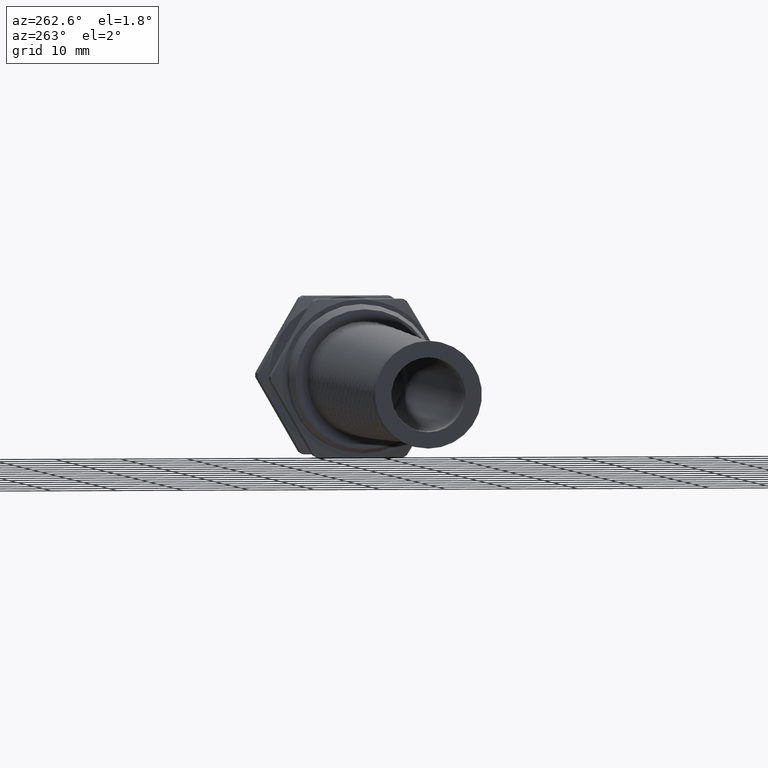
[diagram: clean part render]
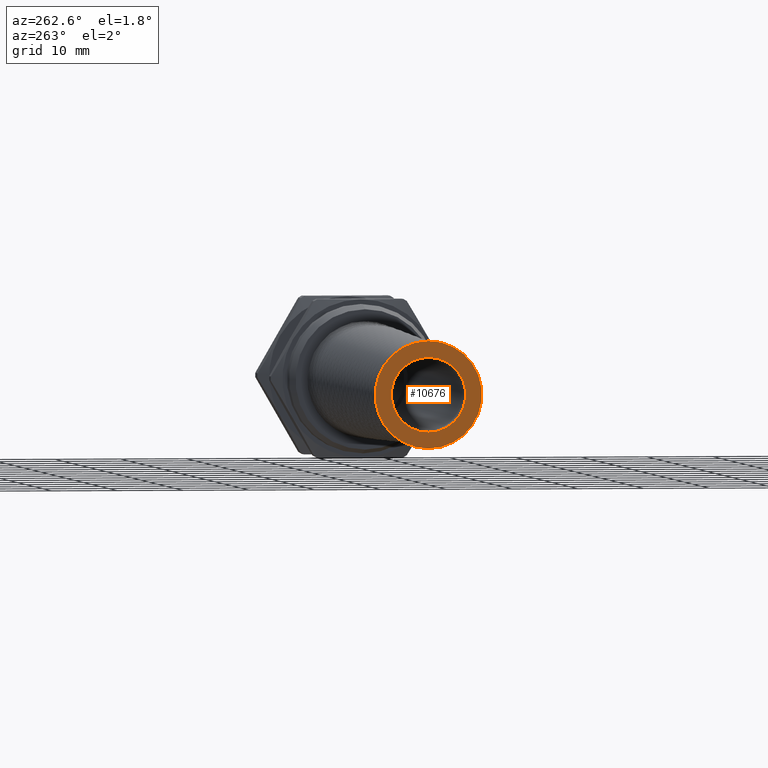
[diagram: same view with one face highlighted and labeled with its STEP entity id]
A machine part, auxiliary view. The second image highlights one B-rep face of the part: STEP entity #10676.
In plain terms, the highlighted planar face has unit normal (-1, 0, 0).
Its self-contained STEP definition (entity closure, byte-faithful):
#8422 = DIRECTION ( 'NONE',  ( 0.0000000000000000000, 0.0000000000000000000, 1.000000000000000000 ) ) ;
#8423 = DIRECTION ( 'NONE',  ( -1.000000000000000000, 0.0000000000000000000, 0.0000000000000000000 ) ) ;
#8424 = CARTESIAN_POINT ( 'NONE',  ( -3.509999999999999800, 0.0000000000000000000, 0.0000000000000000000 ) ) ;
#8425 = AXIS2_PLACEMENT_3D ( 'NONE', #8424, #8423, #8422 ) ;
#8426 = CIRCLE ( 'NONE', #8425, 0.2222650000000000200 ) ;
#8427 = DIRECTION ( 'NONE',  ( 0.0000000000000000000, 0.0000000000000000000, 1.000000000000000000 ) ) ;
#8428 = DIRECTION ( 'NONE',  ( -1.000000000000000000, 0.0000000000000000000, 0.0000000000000000000 ) ) ;
#8429 = CARTESIAN_POINT ( 'NONE',  ( -3.509999999999999800, 0.0000000000000000000, 0.0000000000000000000 ) ) ;
#8430 = AXIS2_PLACEMENT_3D ( 'NONE', #8429, #8428, #8427 ) ;
#8431 = CIRCLE ( 'NONE', #8430, 0.3196900000000000300 ) ;
#8432 = DIRECTION ( 'NONE',  ( 0.0000000000000000000, 0.0000000000000000000, 1.000000000000000000 ) ) ;
#8433 = DIRECTION ( 'NONE',  ( -1.000000000000000000, 0.0000000000000000000, 0.0000000000000000000 ) ) ;
#8434 = CARTESIAN_POINT ( 'NONE',  ( -3.509999999999999800, 0.0000000000000000000, 0.0000000000000000000 ) ) ;
#8435 = AXIS2_PLACEMENT_3D ( 'NONE', #8434, #8433, #8432 ) ;
#8436 = PLANE ( 'NONE',  #8435 ) ;
#8437 = FACE_BOUND ( 'NONE', #10625, .T. ) ;
#8443 = FACE_OUTER_BOUND ( 'NONE', #10680, .T. ) ;
#10562 = VERTEX_POINT ( 'NONE', #11986 ) ;
#10566 = EDGE_CURVE ( 'NONE', #10562, #10571, #11983, .T. ) ;
#10571 = VERTEX_POINT ( 'NONE', #11970 ) ;
#10580 = VERTEX_POINT ( 'NONE', #12017 ) ;
#10608 = EDGE_CURVE ( 'NONE', #10609, #10580, #19855, .T. ) ;
#10609 = VERTEX_POINT ( 'NONE', #19850 ) ;
#10625 = EDGE_LOOP ( 'NONE', ( #10626, #10681 ) ) ;
#10626 = ORIENTED_EDGE ( 'NONE', *, *, #10608, .F. ) ;
#10676 = ADVANCED_FACE ( 'NONE', ( #8443, #8437 ), #8436, .T. ) ;
#10677 = ORIENTED_EDGE ( 'NONE', *, *, #10678, .T. ) ;
#10678 = EDGE_CURVE ( 'NONE', #10571, #10562, #8431, .T. ) ;
#10679 = ORIENTED_EDGE ( 'NONE', *, *, #10566, .T. ) ;
#10680 = EDGE_LOOP ( 'NONE', ( #10677, #10679 ) ) ;
#10681 = ORIENTED_EDGE ( 'NONE', *, *, #10682, .F. ) ;
#10682 = EDGE_CURVE ( 'NONE', #10580, #10609, #8426, .T. ) ;
#11970 = CARTESIAN_POINT ( 'NONE',  ( -3.509999999999999800, 0.0000000000000000000, -0.3196900000000000300 ) ) ;
#11975 = DIRECTION ( 'NONE',  ( 0.0000000000000000000, 0.0000000000000000000, 1.000000000000000000 ) ) ;
#11976 = DIRECTION ( 'NONE',  ( -1.000000000000000000, 0.0000000000000000000, 0.0000000000000000000 ) ) ;
#11977 = CARTESIAN_POINT ( 'NONE',  ( -3.509999999999999800, 0.0000000000000000000, 0.0000000000000000000 ) ) ;
#11978 = AXIS2_PLACEMENT_3D ( 'NONE', #11977, #11976, #11975 ) ;
#11983 = CIRCLE ( 'NONE', #11978, 0.3196900000000000300 ) ;
#11986 = CARTESIAN_POINT ( 'NONE',  ( -3.509999999999999800, 3.915073352194173800E-017, 0.3196900000000000300 ) ) ;
#12017 = CARTESIAN_POINT ( 'NONE',  ( -3.509999999999999800, 2.721961208124864900E-017, 0.2222650000000000200 ) ) ;
#19850 = CARTESIAN_POINT ( 'NONE',  ( -3.509999999999999800, 0.0000000000000000000, -0.2222650000000000200 ) ) ;
#19851 = DIRECTION ( 'NONE',  ( 0.0000000000000000000, 0.0000000000000000000, 1.000000000000000000 ) ) ;
#19852 = DIRECTION ( 'NONE',  ( -1.000000000000000000, 0.0000000000000000000, 0.0000000000000000000 ) ) ;
#19853 = CARTESIAN_POINT ( 'NONE',  ( -3.509999999999999800, 0.0000000000000000000, 0.0000000000000000000 ) ) ;
#19854 = AXIS2_PLACEMENT_3D ( 'NONE', #19853, #19852, #19851 ) ;
#19855 = CIRCLE ( 'NONE', #19854, 0.2222650000000000200 ) ;